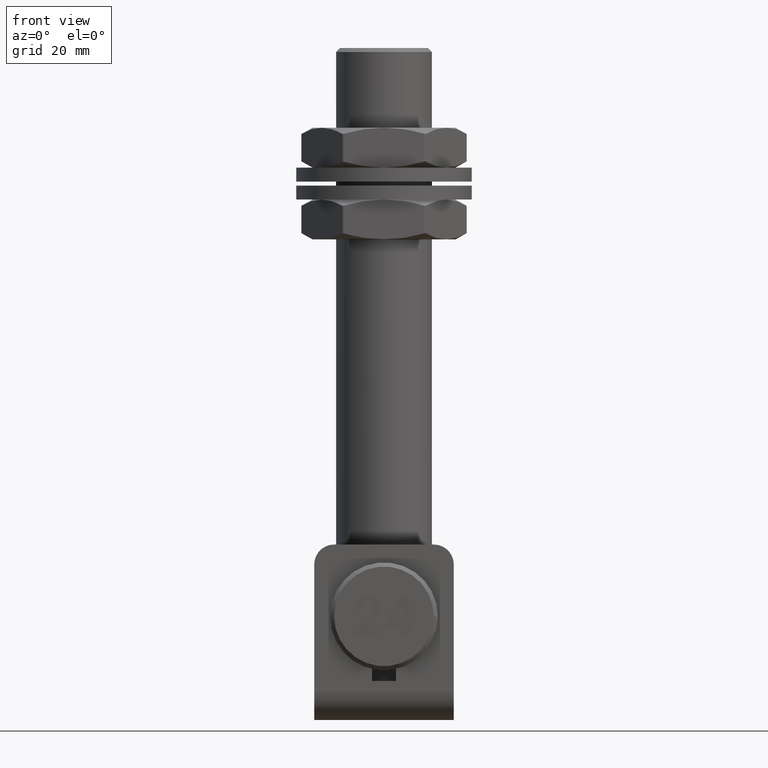
[diagram: clean part render]
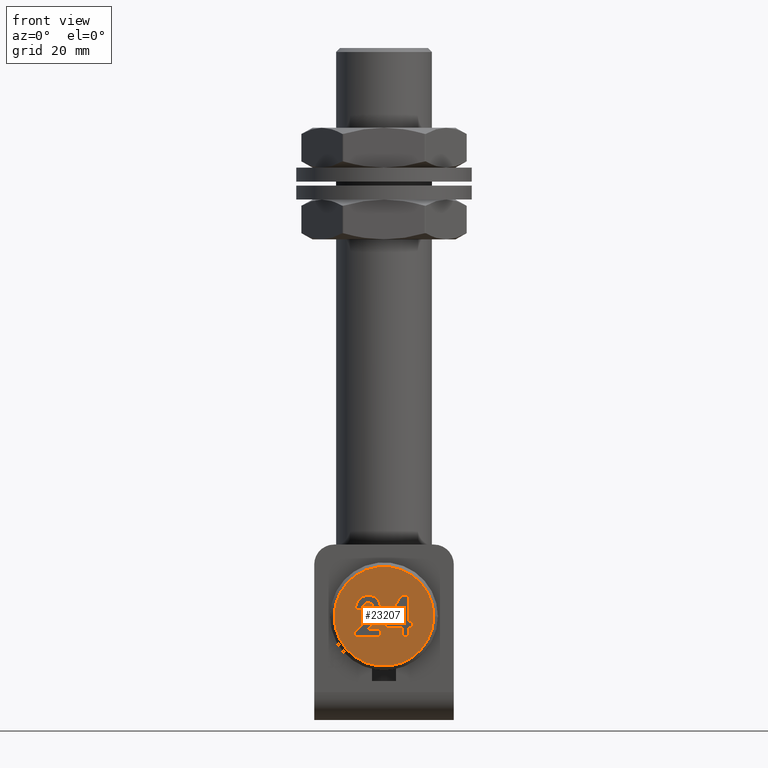
[diagram: same view with one face highlighted and labeled with its STEP entity id]
A machine part, front view. The second image highlights one B-rep face of the part: STEP entity #23207.
In plain terms, the highlighted planar face has unit normal (0, 1, 0).
Its self-contained STEP definition (entity closure, byte-faithful):
#162 = DIRECTION ( 'NONE',  ( -1.000000000000000000, 1.248715672555073806E-47, 0.000000000000000000 ) ) ;
#204 = CARTESIAN_POINT ( 'NONE',  ( 2.695730507753163252, 0.000000000000000000, -2.224119549429654619 ) ) ;
#296 = CARTESIAN_POINT ( 'NONE',  ( 6.212892374296842490, 0.000000000000000000, -4.301137658517532714 ) ) ;
#348 = CARTESIAN_POINT ( 'NONE',  ( 7.435897435897423691, 0.000000000000000000, 4.090544871794872250 ) ) ;
#506 = CARTESIAN_POINT ( 'NONE',  ( 0.000000000000000000, 0.000000000000000000, 0.000000000000000000 ) ) ;
#554 = CARTESIAN_POINT ( 'NONE',  ( 0.9017613116166374176, 0.000000000000000000, -2.383544163545157524 ) ) ;
#566 = ORIENTED_EDGE ( 'NONE', *, *, #19138, .T. ) ;
#580 = ORIENTED_EDGE ( 'NONE', *, *, #7438, .T. ) ;
#736 = CARTESIAN_POINT ( 'NONE',  ( 1.160881747316770962, 0.000000000000000000, -0.8251014892424962666 ) ) ;
#775 = EDGE_CURVE ( 'NONE', #20472, #20631, #15069, .T. ) ;
#822 = CARTESIAN_POINT ( 'NONE',  ( 3.148626919423948234, 0.000000000000000000, -0.6976737709895237671 ) ) ;
#1052 = LINE ( 'NONE', #7384, #4547 ) ;
#1154 = CARTESIAN_POINT ( 'NONE',  ( 0.7692307692307723821, 0.000000000000000000, 3.333333333333333481 ) ) ;
#1407 = VERTEX_POINT ( 'NONE', #348 ) ;
#1458 = CARTESIAN_POINT ( 'NONE',  ( 0.8974358974359004648, 0.000000000000000000, -2.257612179487179294 ) ) ;
#1476 = CARTESIAN_POINT ( 'NONE',  ( 4.047884632372604763, 0.000000000000000000, -3.459858976382712115 ) ) ;
#1579 = B_SPLINE_CURVE_WITH_KNOTS ( 'NONE', 3,
 ( #4480, #19085, #15562, #4404, #2600, #20942, #6337, #22858, #822, #9771, #22790, #21086, #11769, #11912, #13630 ),
 .UNSPECIFIED., .F., .F.,
 ( 4, 1, 1, 1, 1, 1, 1, 1, 1, 1, 1, 1, 4 ),
 ( 0.000000000000000000, 0.1038493619451092836, 0.2011254171233876065, 0.2911309633583702428, 0.3743680063455608886, 0.4507309970211886840, 0.5205205643535403270, 0.5832754154787959111, 0.6400800077829345014, 0.7420435568440585383, 0.8350514117686058668, 0.9208688166387036800, 1.000000000000000000 ),
 .UNSPECIFIED. ) ;
#1716 = CARTESIAN_POINT ( 'NONE',  ( 1.754710264718480905, 0.000000000000000000, -4.396929558284110584 ) ) ;
#1738 = ORIENTED_EDGE ( 'NONE', *, *, #6008, .T. ) ;
#1905 = VERTEX_POINT ( 'NONE', #14963 ) ;
#2011 = EDGE_CURVE ( 'NONE', #20901, #2426, #23669, .T. ) ;
#2107 = LINE ( 'NONE', #1154, #5581 ) ;
#2148 = VECTOR ( 'NONE', #18004, 1000.000000000000000 ) ;
#2169 = CARTESIAN_POINT ( 'NONE',  ( 5.981136075986041689, 0.000000000000000000, -4.525703782343204473 ) ) ;
#2244 = CARTESIAN_POINT ( 'NONE',  ( -12.49999999999999645, 4.091328952775487044E-16, 0.000000000000000000 ) ) ;
#2254 = CARTESIAN_POINT ( 'NONE',  ( 4.013272651356240672, 0.000000000000000000, -5.254233085712087359 ) ) ;
#2279 = EDGE_CURVE ( 'NONE', #20631, #7508, #9259, .T. ) ;
#2326 = VERTEX_POINT ( 'NONE', #12909 ) ;
#2328 = CARTESIAN_POINT ( 'NONE',  ( -0.2564102564102565540, 0.000000000000000000, 2.948717948717948900 ) ) ;
#2329 = CARTESIAN_POINT ( 'NONE',  ( 6.611608432872854380, 0.000000000000000000, -3.775698318619832961 ) ) ;
#2426 = VERTEX_POINT ( 'NONE', #3971 ) ;
#2527 = DIRECTION ( 'NONE',  ( -1.000000000000000000, 3.273063162220390326E-17, 0.000000000000000000 ) ) ;
#2600 = CARTESIAN_POINT ( 'NONE',  ( 3.773390104110658783, 0.000000000000000000, 0.1600722506744252649 ) ) ;
#2927 = CARTESIAN_POINT ( 'NONE',  ( -6.282051282051300589, 0.000000000000000000, -5.256410256410256387 ) ) ;
#2933 = DIRECTION ( 'NONE',  ( 0.000000000000000000, -1.097407307666327465E-31, 1.000000000000000000 ) ) ;
#3028 = EDGE_CURVE ( 'NONE', #11375, #3718, #19875, .T. ) ;
#3065 = ORIENTED_EDGE ( 'NONE', *, *, #12020, .T. ) ;
#3132 = VECTOR ( 'NONE', #15585, 1000.000000000000000 ) ;
#3166 = CARTESIAN_POINT ( 'NONE',  ( 5.350538696513813974, 0.000000000000000000, -2.056808136281861987 ) ) ;
#3195 = CARTESIAN_POINT ( 'NONE',  ( -0.2564102564102565540, 0.000000000000000000, 1.131810897435897800 ) ) ;
#3222 = LINE ( 'NONE', #13779, #23672 ) ;
#3287 = LINE ( 'NONE', #13842, #2148 ) ;
#3326 = LINE ( 'NONE', #10968, #15137 ) ;
#3347 = LINE ( 'NONE', #16278, #10833 ) ;
#3352 = EDGE_CURVE ( 'NONE', #21139, #20901, #20453, .T. ) ;
#3447 = EDGE_LOOP ( 'NONE', ( #14843 ) ) ;
#3490 = CARTESIAN_POINT ( 'NONE',  ( 5.212745881549675886, 0.000000000000000000, -2.567122485083089156 ) ) ;
#3665 = DIRECTION ( 'NONE',  ( -0.5452008499230921457, 3.686378133342671527E-33, -0.8383054534256222379 ) ) ;
#3718 = VERTEX_POINT ( 'NONE', #6536 ) ;
#3851 = CARTESIAN_POINT ( 'NONE',  ( 2.888831913534871454, 0.000000000000000000, -2.890989924265597200 ) ) ;
#3869 = LINE ( 'NONE', #11712, #12496 ) ;
#3971 = CARTESIAN_POINT ( 'NONE',  ( -7.179487179487197501, 0.000000000000000000, 1.282051282051282159 ) ) ;
#3995 = CARTESIAN_POINT ( 'NONE',  ( 2.517848952035801613, 0.000000000000000000, 1.459684170639614864 ) ) ;
#4047 = CARTESIAN_POINT ( 'NONE',  ( 4.883616782359537112, 0.000000000000000000, -5.129055654255662233 ) ) ;
#4085 = CARTESIAN_POINT ( 'NONE',  ( 0.9024904191430668243, 0.000000000000000000, -2.028109764263357206 ) ) ;
#4118 = VECTOR ( 'NONE', #5974, 1000.000000000000000 ) ;
#4123 = CARTESIAN_POINT ( 'NONE',  ( 3.898237179487194393, 0.000000000000000000, -5.256410256410256387 ) ) ;
#4192 = CARTESIAN_POINT ( 'NONE',  ( 5.463965430570580040, 0.000000000000000000, -4.886372236948200332 ) ) ;
#4301 = VERTEX_POINT ( 'NONE', #19749 ) ;
#4372 = CARTESIAN_POINT ( 'NONE',  ( -6.282051282051300589, 0.000000000000000000, 1.282051282051282159 ) ) ;
#4377 = CARTESIAN_POINT ( 'NONE',  ( 2.692307692307706724, 0.000000000000000000, -2.131410256410255943 ) ) ;
#4404 = CARTESIAN_POINT ( 'NONE',  ( 3.987213823199759144, 0.000000000000000000, 0.4081259808719842064 ) ) ;
#4442 = DIRECTION ( 'NONE',  ( -1.000000000000000000, 1.248715672555073806E-47, 0.000000000000000000 ) ) ;
#4480 = CARTESIAN_POINT ( 'NONE',  ( 4.475160256410243065, 0.000000000000000000, 0.9395032051282056207 ) ) ;
#4547 = VECTOR ( 'NONE', #18471, 1000.000000000000000 ) ;
#4574 = ORIENTED_EDGE ( 'NONE', *, *, #8123, .T. ) ;
#4620 = VERTEX_POINT ( 'NONE', #2244 ) ;
#4895 = LINE ( 'NONE', #7705, #3132 ) ;
#5022 = CARTESIAN_POINT ( 'NONE',  ( 5.145657258848933324, 0.000000000000000000, -2.716192244080153362 ) ) ;
#5046 = CARTESIAN_POINT ( 'NONE',  ( 0.000000000000000000, 0.000000000000000000, 0.000000000000000000 ) ) ;
#5182 = CARTESIAN_POINT ( 'NONE',  ( -7.179487179487197501, 0.000000000000000000, 2.948717948717948900 ) ) ;
#5282 = CARTESIAN_POINT ( 'NONE',  ( 4.535080868534912213, 0.000000000000000000, -3.343781880472533885 ) ) ;
#5581 = VECTOR ( 'NONE', #2933, 1000.000000000000000 ) ;
#5625 = CARTESIAN_POINT ( 'NONE',  ( 2.702362761446140293, 0.000000000000000000, -2.403758668394563092 ) ) ;
#5731 = ORIENTED_EDGE ( 'NONE', *, *, #775, .T. ) ;
#5734 = CARTESIAN_POINT ( 'NONE',  ( 7.156597888856368606, 0.000000000000000000, -2.067734841220996600 ) ) ;
#5884 = CARTESIAN_POINT ( 'NONE',  ( 4.568666002936305759, 0.000000000000000000, -5.201136804420536386 ) ) ;
#5886 = EDGE_CURVE ( 'NONE', #12665, #11375, #2107, .T. ) ;
#5922 = FACE_BOUND ( 'NONE', #17546, .T. ) ;
#5974 = DIRECTION ( 'NONE',  ( -1.000000000000000000, 1.248715672555073806E-47, 0.000000000000000000 ) ) ;
#5979 = CARTESIAN_POINT ( 'NONE',  ( 1.289241229420915236, 0.000000000000000000, -3.751375095637238033 ) ) ;
#6008 = EDGE_CURVE ( 'NONE', #9209, #21688, #12832, .T. ) ;
#6261 = CARTESIAN_POINT ( 'NONE',  ( 4.134615384615371703, 0.000000000000000000, 3.333333333333333481 ) ) ;
#6337 = CARTESIAN_POINT ( 'NONE',  ( 3.415937503877595205, 0.000000000000000000, -0.2964415054149734940 ) ) ;
#6415 = CARTESIAN_POINT ( 'NONE',  ( 0.9611936330899211178, 0.000000000000000000, -1.559752245885879463 ) ) ;
#6489 = FACE_BOUND ( 'NONE', #7018, .T. ) ;
#6536 = CARTESIAN_POINT ( 'NONE',  ( 7.435897435897423691, 0.000000000000000000, 5.000000000000000000 ) ) ;
#7018 = EDGE_LOOP ( 'NONE', ( #16234, #18520, #11788, #14964, #12597, #580, #7084, #20373, #3065, #18889, #5731 ) ) ;
#7028 = CARTESIAN_POINT ( 'NONE',  ( 5.271813143355998932, 0.000000000000000000, -2.408218577340008881 ) ) ;
#7084 = ORIENTED_EDGE ( 'NONE', *, *, #21181, .T. ) ;
#7112 = CARTESIAN_POINT ( 'NONE',  ( 5.381608423082919757, 0.000000000000000000, -1.734189559396061675 ) ) ;
#7194 = ORIENTED_EDGE ( 'NONE', *, *, #19319, .T. ) ;
#7384 = CARTESIAN_POINT ( 'NONE',  ( -4.487179487179504989, 0.000000000000000000, 2.948717948717948900 ) ) ;
#7438 = EDGE_CURVE ( 'NONE', #8814, #21439, #8645, .T. ) ;
#7489 = CARTESIAN_POINT ( 'NONE',  ( 2.692307692307706724, 0.000000000000000000, -2.131410256410255943 ) ) ;
#7508 = VERTEX_POINT ( 'NONE', #9925 ) ;
#7541 = CARTESIAN_POINT ( 'NONE',  ( 1.080533613779107727, 0.000000000000000000, -1.074657301942110843 ) ) ;
#7553 = VECTOR ( 'NONE', #3665, 1000.000000000000114 ) ;
#7582 = CARTESIAN_POINT ( 'NONE',  ( 7.015725736292076853, 0.000000000000000000, -2.817237689682481339 ) ) ;
#7705 = CARTESIAN_POINT ( 'NONE',  ( -6.282051282051300589, 0.000000000000000000, 5.000000000000000000 ) ) ;
#7727 = CARTESIAN_POINT ( 'NONE',  ( 6.773664607853286057, 0.000000000000000000, -3.479015080774944479 ) ) ;
#7755 = LINE ( 'NONE', #9056, #11741 ) ;
#7771 = CARTESIAN_POINT ( 'NONE',  ( 2.037732998935157358, 0.000000000000000000, 0.8220498048689192094 ) ) ;
#7930 = ORIENTED_EDGE ( 'NONE', *, *, #5886, .T. ) ;
#8123 = EDGE_CURVE ( 'NONE', #13214, #19203, #16535, .T. ) ;
#8227 = EDGE_CURVE ( 'NONE', #4620, #4620, #13495, .T. ) ;
#8485 = DIRECTION ( 'NONE',  ( -1.000000000000000000, 3.273063162220390326E-17, 0.000000000000000000 ) ) ;
#8644 = CARTESIAN_POINT ( 'NONE',  ( 5.375755673791099198, 0.000000000000000000, -1.865616103546565485 ) ) ;
#8645 = LINE ( 'NONE', #12011, #22737 ) ;
#8658 = EDGE_CURVE ( 'NONE', #1407, #2326, #7755, .T. ) ;
#8717 = B_SPLINE_CURVE_WITH_KNOTS ( 'NONE', 3,
 ( #21696, #1476, #14347, #18131, #18041, #5282, #21469, #17892, #14502, #16036, #8957, #5022, #3490, #7028, #16268, #3166, #8644, #7112, #14186 ),
 .UNSPECIFIED., .F., .F.,
 ( 4, 1, 1, 1, 1, 1, 1, 1, 1, 1, 1, 1, 1, 1, 1, 1, 4 ),
 ( 0.000000000000000000, 0.05646686847186224711, 0.1111640986969631428, 0.1649370968759848177, 0.2183217523125936255, 0.2723929232482763529, 0.3279763434477038775, 0.3852910519840206938, 0.4449029182928191384, 0.5068438192198354564, 0.5694881852629681829, 0.6341532155537223936, 0.7009760953100497849, 0.7708974968462684041, 0.8436256105557792262, 0.9196596761155397814, 1.000000000000000000 ),
 .UNSPECIFIED. ) ;
#8814 = VERTEX_POINT ( 'NONE', #5182 ) ;
#8957 = CARTESIAN_POINT ( 'NONE',  ( 5.064518044407638975, 0.000000000000000000, -2.853459905820766362 ) ) ;
#9056 = CARTESIAN_POINT ( 'NONE',  ( 7.435897435897423691, 0.000000000000000000, 4.090544871794872250 ) ) ;
#9142 = DIRECTION ( 'NONE',  ( -0.6847574953382552509, 3.698657884126803967E-33, -0.7287710014662214242 ) ) ;
#9185 = CARTESIAN_POINT ( 'NONE',  ( 2.357973334008672150, 0.000000000000000000, -4.876056005491084200 ) ) ;
#9209 = VERTEX_POINT ( 'NONE', #20505 ) ;
#9259 = LINE ( 'NONE', #14689, #7553 ) ;
#9285 = CARTESIAN_POINT ( 'NONE',  ( 4.000400641025628978, 0.000000000000000000, -3.461538461538460343 ) ) ;
#9410 = CARTESIAN_POINT ( 'NONE',  ( 3.898237179487194393, 0.000000000000000000, -5.256410256410256387 ) ) ;
#9571 = CARTESIAN_POINT ( 'NONE',  ( 0.8974358974359004648, 0.000000000000000000, -2.257612179487179294 ) ) ;
#9596 = CARTESIAN_POINT ( 'NONE',  ( 2.990188479513307573, 0.000000000000000000, 2.021740701596806744 ) ) ;
#9628 = EDGE_CURVE ( 'NONE', #2326, #13214, #1579, .T. ) ;
#9680 = AXIS2_PLACEMENT_3D ( 'NONE', #5046, #19507, #8485 ) ;
#9686 = DIRECTION ( 'NONE',  ( 3.273063162220390326E-17, 1.000000000000000000, -1.097407307666327246E-31 ) ) ;
#9771 = CARTESIAN_POINT ( 'NONE',  ( 3.018645811217768316, 0.000000000000000000, -0.9323684157909403192 ) ) ;
#9843 = PLANE ( 'NONE',  #23905 ) ;
#9925 = CARTESIAN_POINT ( 'NONE',  ( -4.411057692307710276, 0.000000000000000000, -5.256410256410256387 ) ) ;
#10079 = VECTOR ( 'NONE', #14278, 1000.000000000000000 ) ;
#10208 = EDGE_CURVE ( 'NONE', #14375, #20965, #14333, .T. ) ;
#10351 = VECTOR ( 'NONE', #20058, 1000.000000000000000 ) ;
#10462 = EDGE_CURVE ( 'NONE', #7508, #21139, #20830, .T. ) ;
#10567 = VERTEX_POINT ( 'NONE', #15672 ) ;
#10658 = CARTESIAN_POINT ( 'NONE',  ( 4.000400641025628978, 0.000000000000000000, -3.461538461538460343 ) ) ;
#10833 = VECTOR ( 'NONE', #22040, 1000.000000000000000 ) ;
#10892 = ORIENTED_EDGE ( 'NONE', *, *, #14409, .T. ) ;
#10968 = CARTESIAN_POINT ( 'NONE',  ( 4.134615384615371703, 0.000000000000000000, 3.333333333333333481 ) ) ;
#11165 = CARTESIAN_POINT ( 'NONE',  ( 0.7692307692307723821, 0.000000000000000000, 5.000000000000000000 ) ) ;
#11176 = CARTESIAN_POINT ( 'NONE',  ( 7.096306517550315718, 0.000000000000000000, -2.453059331248744535 ) ) ;
#11190 = CARTESIAN_POINT ( 'NONE',  ( 2.705838239880384855, 0.000000000000000000, -5.047578771092743999 ) ) ;
#11216 = CARTESIAN_POINT ( 'NONE',  ( 2.794077043625910584, 0.000000000000000000, 1.796585122624639874 ) ) ;
#11288 = CARTESIAN_POINT ( 'NONE',  ( 1.499968878369690950, 0.000000000000000000, -0.04603137015635107993 ) ) ;
#11322 = CARTESIAN_POINT ( 'NONE',  ( 6.425931908037654239, 0.000000000000000000, -4.051350641820528509 ) ) ;
#11375 = VERTEX_POINT ( 'NONE', #11165 ) ;
#11552 = ORIENTED_EDGE ( 'NONE', *, *, #22744, .T. ) ;
#11693 = CARTESIAN_POINT ( 'NONE',  ( -6.282051282051300589, 0.000000000000000000, 1.282051282051282159 ) ) ;
#11712 = CARTESIAN_POINT ( 'NONE',  ( -4.487179487179504989, 0.000000000000000000, 5.000000000000000000 ) ) ;
#11741 = VECTOR ( 'NONE', #9142, 1000.000000000000000 ) ;
#11769 = CARTESIAN_POINT ( 'NONE',  ( 2.706690279058841408, 0.000000000000000000, -1.835917833793885734 ) ) ;
#11788 = ORIENTED_EDGE ( 'NONE', *, *, #3352, .T. ) ;
#11912 = CARTESIAN_POINT ( 'NONE',  ( 2.696970557656962697, 0.000000000000000000, -2.035610981757747684 ) ) ;
#12011 = CARTESIAN_POINT ( 'NONE',  ( -7.179487179487197501, 0.000000000000000000, 2.948717948717948900 ) ) ;
#12020 = EDGE_CURVE ( 'NONE', #1905, #18860, #3869, .T. ) ;
#12496 = VECTOR ( 'NONE', #18888, 1000.000000000000000 ) ;
#12597 = ORIENTED_EDGE ( 'NONE', *, *, #12768, .T. ) ;
#12665 = VERTEX_POINT ( 'NONE', #23601 ) ;
#12768 = EDGE_CURVE ( 'NONE', #2426, #8814, #3222, .T. ) ;
#12832 = B_SPLINE_CURVE_WITH_KNOTS ( 'NONE', 3,
 ( #9410, #18504, #18439, #20190, #11190, #9185, #23735, #1716, #22020, #5979, #20573, #15300, #13360, #554, #9571 ),
 .UNSPECIFIED., .F., .F.,
 ( 4, 1, 1, 1, 1, 1, 1, 1, 1, 1, 1, 1, 4 ),
 ( 0.000000000000000000, 0.08960056311114231176, 0.1749981562047625006, 0.2574530692942108012, 0.3391733516080419064, 0.4203131029915069816, 0.5013353616744209429, 0.5841166147454606161, 0.6702216438255634845, 0.7565112185241614773, 0.8392316525298684216, 0.9201329153007136163, 0.9999999999999998890 ),
 .UNSPECIFIED. ) ;
#12909 = CARTESIAN_POINT ( 'NONE',  ( 4.475160256410243065, 0.000000000000000000, 0.9395032051282056207 ) ) ;
#12917 = DIRECTION ( 'NONE',  ( 0.000000000000000000, -1.097407307666327465E-31, 1.000000000000000000 ) ) ;
#12942 = CARTESIAN_POINT ( 'NONE',  ( 3.908468417936228345, 0.000000000000000000, -3.457025006618102747 ) ) ;
#12967 = ORIENTED_EDGE ( 'NONE', *, *, #10208, .T. ) ;
#13155 = CARTESIAN_POINT ( 'NONE',  ( 1.653794029105357222, 0.000000000000000000, 0.2317206003124804292 ) ) ;
#13214 = VERTEX_POINT ( 'NONE', #4377 ) ;
#13360 = CARTESIAN_POINT ( 'NONE',  ( 0.9104681486394136103, 0.000000000000000000, -2.637038792112925023 ) ) ;
#13495 = CIRCLE ( 'NONE', #9680, 12.49999999999999645 ) ;
#13630 = CARTESIAN_POINT ( 'NONE',  ( 2.692307692307706724, 0.000000000000000000, -2.131410256410255943 ) ) ;
#13632 = CARTESIAN_POINT ( 'NONE',  ( 1.367914020826976884, 0.000000000000000000, -0.3126386003962783322 ) ) ;
#13637 = B_SPLINE_CURVE_WITH_KNOTS ( 'NONE', 3,
 ( #20426, #18658, #5734, #11176, #7582, #22499, #7727, #2329, #11322, #296, #2169, #15208, #4192, #15040, #4047, #5884, #22424, #2254, #4123 ),
 .UNSPECIFIED., .F., .F.,
 ( 4, 1, 1, 1, 1, 1, 1, 1, 1, 1, 1, 1, 1, 1, 1, 1, 4 ),
 ( 0.000000000000000000, 0.07493300306220941620, 0.1464145890375253001, 0.2147331780636017040, 0.2803956905112224840, 0.3439118344860920828, 0.4055207421763735165, 0.4664761993946441310, 0.5268093209306767832, 0.5861676109153181047, 0.6441223785331934293, 0.7016405780206490528, 0.7587758228835449481, 0.8166463504748902036, 0.8756669356691189066, 0.9366301735601212375, 1.000000000000000000 ),
 .UNSPECIFIED. ) ;
#13779 = CARTESIAN_POINT ( 'NONE',  ( -7.179487179487197501, 0.000000000000000000, 1.282051282051282159 ) ) ;
#13842 = CARTESIAN_POINT ( 'NONE',  ( 5.384615384615372591, 0.000000000000000000, -1.666666666666666519 ) ) ;
#14186 = CARTESIAN_POINT ( 'NONE',  ( 5.384615384615372591, 0.000000000000000000, -1.666666666666666519 ) ) ;
#14235 = DIRECTION ( 'NONE',  ( 0.000000000000000000, 1.097407307666327246E-31, -1.000000000000000000 ) ) ;
#14262 = B_SPLINE_CURVE_WITH_KNOTS ( 'NONE', 3,
 ( #15564, #17406, #4085, #18780, #6415, #22860, #7541, #736, #21015, #13632, #11288, #13155, #16942, #7771, #20604, #3995, #11216, #9596, #16846 ),
 .UNSPECIFIED., .F., .F.,
 ( 4, 1, 1, 1, 1, 1, 1, 1, 1, 1, 1, 1, 1, 1, 1, 1, 4 ),
 ( 0.000000000000000000, 0.04551790420933761461, 0.09161629767977473582, 0.1392470217345384287, 0.1882421946368200150, 0.2386738793130218639, 0.2906648485143009664, 0.3448410113493712847, 0.4004329488281121452, 0.4591452564866727593, 0.5225527989850071720, 0.5901028361144564638, 0.6628158209351491248, 0.7396804345129894820, 0.8215748733749372867, 0.9083297394419733717, 1.000000000000000000 ),
 .UNSPECIFIED. ) ;
#14278 = DIRECTION ( 'NONE',  ( 1.000000000000000000, -1.248715672555073806E-47, 0.000000000000000000 ) ) ;
#14321 = CARTESIAN_POINT ( 'NONE',  ( -0.2564102564102565540, 0.000000000000000000, 2.948717948717948900 ) ) ;
#14333 = LINE ( 'NONE', #19722, #16352 ) ;
#14347 = CARTESIAN_POINT ( 'NONE',  ( 4.141364494873767121, 0.000000000000000000, -3.456552640142251498 ) ) ;
#14375 = VERTEX_POINT ( 'NONE', #16812 ) ;
#14409 = EDGE_CURVE ( 'NONE', #10567, #9209, #13637, .T. ) ;
#14419 = VECTOR ( 'NONE', #12917, 1000.000000000000000 ) ;
#14502 = CARTESIAN_POINT ( 'NONE',  ( 4.872791971330611815, 0.000000000000000000, -3.091188226014703222 ) ) ;
#14689 = CARTESIAN_POINT ( 'NONE',  ( -0.2564102564102565540, 0.000000000000000000, 1.131810897435897800 ) ) ;
#14843 = ORIENTED_EDGE ( 'NONE', *, *, #8227, .T. ) ;
#14886 = EDGE_CURVE ( 'NONE', #14914, #1905, #4895, .T. ) ;
#14914 = VERTEX_POINT ( 'NONE', #18073 ) ;
#14963 = CARTESIAN_POINT ( 'NONE',  ( -4.487179487179504989, 0.000000000000000000, 5.000000000000000000 ) ) ;
#14964 = ORIENTED_EDGE ( 'NONE', *, *, #2011, .T. ) ;
#15040 = CARTESIAN_POINT ( 'NONE',  ( 5.181048217391428068, 0.000000000000000000, -5.021186711299971073 ) ) ;
#15069 = LINE ( 'NONE', #14321, #17106 ) ;
#15137 = VECTOR ( 'NONE', #162, 1000.000000000000000 ) ;
#15208 = CARTESIAN_POINT ( 'NONE',  ( 5.731257156334691238, 0.000000000000000000, -4.722025382450863340 ) ) ;
#15254 = ORIENTED_EDGE ( 'NONE', *, *, #9628, .T. ) ;
#15300 = CARTESIAN_POINT ( 'NONE',  ( 0.9915418483940876548, 0.000000000000000000, -3.013640863478463938 ) ) ;
#15562 = CARTESIAN_POINT ( 'NONE',  ( 4.223419261458118079, 0.000000000000000000, 0.6695733206691154571 ) ) ;
#15564 = CARTESIAN_POINT ( 'NONE',  ( 0.8974358974359004648, 0.000000000000000000, -2.257612179487179294 ) ) ;
#15585 = DIRECTION ( 'NONE',  ( 1.000000000000000000, -1.248715672555073806E-47, 0.000000000000000000 ) ) ;
#15672 = CARTESIAN_POINT ( 'NONE',  ( 7.179487179487167303, 0.000000000000000000, -1.666666666666666075 ) ) ;
#15990 = FACE_OUTER_BOUND ( 'NONE', #3447, .T. ) ;
#16036 = CARTESIAN_POINT ( 'NONE',  ( 4.973165253954779708, 0.000000000000000000, -2.978840264189996034 ) ) ;
#16234 = ORIENTED_EDGE ( 'NONE', *, *, #2279, .T. ) ;
#16268 = CARTESIAN_POINT ( 'NONE',  ( 5.317368642091307329, 0.000000000000000000, -2.237773763346053713 ) ) ;
#16278 = CARTESIAN_POINT ( 'NONE',  ( -6.282051282051300589, 0.000000000000000000, 2.948717948717948900 ) ) ;
#16352 = VECTOR ( 'NONE', #21562, 999.9999999999998863 ) ;
#16535 = B_SPLINE_CURVE_WITH_KNOTS ( 'NONE', 3,
 ( #7489, #204, #5625, #18649, #3851, #20167, #22082, #22173, #16742, #12942, #10658 ),
 .UNSPECIFIED., .F., .F.,
 ( 4, 1, 1, 1, 1, 1, 1, 1, 4 ),
 ( 0.000000000000000000, 0.1326995272668022030, 0.2571266093063658831, 0.3780142218590326064, 0.5007685709974879495, 0.6232531629689262997, 0.7437487086138715453, 0.8681757906534350866, 1.000000000000000000 ),
 .UNSPECIFIED. ) ;
#16620 = CARTESIAN_POINT ( 'NONE',  ( -6.282051282051300589, 0.000000000000000000, -5.256410256410256387 ) ) ;
#16706 = LINE ( 'NONE', #23760, #10351 ) ;
#16742 = CARTESIAN_POINT ( 'NONE',  ( 3.729762617207915021, 0.000000000000000000, -3.448251362856553204 ) ) ;
#16812 = CARTESIAN_POINT ( 'NONE',  ( 3.090945512820527430, 0.000000000000000000, 2.137419871794871362 ) ) ;
#16846 = CARTESIAN_POINT ( 'NONE',  ( 3.090945512820527430, 0.000000000000000000, 2.137419871794871362 ) ) ;
#16942 = CARTESIAN_POINT ( 'NONE',  ( 1.833633990821485371, 0.000000000000000000, 0.5213815997561866977 ) ) ;
#17106 = VECTOR ( 'NONE', #14235, 1000.000000000000000 ) ;
#17228 = EDGE_CURVE ( 'NONE', #19203, #4301, #8717, .T. ) ;
#17320 = ORIENTED_EDGE ( 'NONE', *, *, #3028, .T. ) ;
#17406 = CARTESIAN_POINT ( 'NONE',  ( 0.8991136060725604118, 0.000000000000000000, -2.181435202423378517 ) ) ;
#17546 = EDGE_LOOP ( 'NONE', ( #19752, #22984, #10892, #1738, #7194, #12967, #11552, #7930, #17320, #566, #18916, #15254, #4574 ) ) ;
#17892 = CARTESIAN_POINT ( 'NONE',  ( 4.766272863213234956, 0.000000000000000000, -3.189975252784731818 ) ) ;
#18004 = DIRECTION ( 'NONE',  ( 1.000000000000000000, -1.248715672555073806E-47, 0.000000000000000000 ) ) ;
#18041 = CARTESIAN_POINT ( 'NONE',  ( 4.409526256966958435, 0.000000000000000000, -3.395754009297371034 ) ) ;
#18073 = CARTESIAN_POINT ( 'NONE',  ( -6.282051282051300589, 0.000000000000000000, 5.000000000000000000 ) ) ;
#18131 = CARTESIAN_POINT ( 'NONE',  ( 4.278772586118756216, 0.000000000000000000, -3.434543254362499631 ) ) ;
#18418 = EDGE_CURVE ( 'NONE', #4301, #10567, #3287, .T. ) ;
#18439 = CARTESIAN_POINT ( 'NONE',  ( 3.481069483516256557, 0.000000000000000000, -5.244252413133982493 ) ) ;
#18471 = DIRECTION ( 'NONE',  ( 1.000000000000000000, -1.248715672555073806E-47, 0.000000000000000000 ) ) ;
#18504 = CARTESIAN_POINT ( 'NONE',  ( 3.756972472812074137, 0.000000000000000000, -5.252293268971362394 ) ) ;
#18520 = ORIENTED_EDGE ( 'NONE', *, *, #10462, .T. ) ;
#18649 = CARTESIAN_POINT ( 'NONE',  ( 2.777062558927354985, 0.000000000000000000, -2.658550927465507474 ) ) ;
#18658 = CARTESIAN_POINT ( 'NONE',  ( 7.171738446968060288, 0.000000000000000000, -1.802440643094171069 ) ) ;
#18780 = CARTESIAN_POINT ( 'NONE',  ( 0.9259698507146217894, 0.000000000000000000, -1.796090745619892459 ) ) ;
#18860 = VERTEX_POINT ( 'NONE', #18957 ) ;
#18888 = DIRECTION ( 'NONE',  ( 0.000000000000000000, 1.097407307666327246E-31, -1.000000000000000000 ) ) ;
#18889 = ORIENTED_EDGE ( 'NONE', *, *, #20827, .T. ) ;
#18916 = ORIENTED_EDGE ( 'NONE', *, *, #8658, .T. ) ;
#18957 = CARTESIAN_POINT ( 'NONE',  ( -4.487179487179504989, 0.000000000000000000, 2.948717948717948900 ) ) ;
#19085 = CARTESIAN_POINT ( 'NONE',  ( 4.389437949204855194, 0.000000000000000000, 0.8475872560237796005 ) ) ;
#19138 = EDGE_CURVE ( 'NONE', #3718, #1407, #16706, .T. ) ;
#19203 = VERTEX_POINT ( 'NONE', #9285 ) ;
#19319 = EDGE_CURVE ( 'NONE', #21688, #14375, #14262, .T. ) ;
#19350 = CARTESIAN_POINT ( 'NONE',  ( 0.7692307692307723821, 0.000000000000000000, 5.000000000000000000 ) ) ;
#19507 = DIRECTION ( 'NONE',  ( -3.273063162220390326E-17, -1.000000000000000000, 1.097407307666327246E-31 ) ) ;
#19722 = CARTESIAN_POINT ( 'NONE',  ( 3.090945512820527430, 0.000000000000000000, 2.137419871794871362 ) ) ;
#19749 = CARTESIAN_POINT ( 'NONE',  ( 5.384615384615372591, 0.000000000000000000, -1.666666666666666519 ) ) ;
#19752 = ORIENTED_EDGE ( 'NONE', *, *, #17228, .T. ) ;
#19875 = LINE ( 'NONE', #19350, #10079 ) ;
#20058 = DIRECTION ( 'NONE',  ( 0.000000000000000000, 1.097407307666327246E-31, -1.000000000000000000 ) ) ;
#20167 = CARTESIAN_POINT ( 'NONE',  ( 3.051099824973356078, 0.000000000000000000, -3.090487421552949865 ) ) ;
#20190 = CARTESIAN_POINT ( 'NONE',  ( 3.081440852985050771, 0.000000000000000000, -5.166833801069117271 ) ) ;
#20373 = ORIENTED_EDGE ( 'NONE', *, *, #14886, .T. ) ;
#20426 = CARTESIAN_POINT ( 'NONE',  ( 7.179487179487167303, 0.000000000000000000, -1.666666666666666075 ) ) ;
#20453 = LINE ( 'NONE', #16620, #14419 ) ;
#20472 = VERTEX_POINT ( 'NONE', #2328 ) ;
#20505 = CARTESIAN_POINT ( 'NONE',  ( 3.898237179487194393, 0.000000000000000000, -5.256410256410256387 ) ) ;
#20573 = CARTESIAN_POINT ( 'NONE',  ( 1.116363502824997189, 0.000000000000000000, -3.387599644051999093 ) ) ;
#20595 = CARTESIAN_POINT ( 'NONE',  ( -6.282051282051300589, 0.000000000000000000, 2.948717948717948900 ) ) ;
#20604 = CARTESIAN_POINT ( 'NONE',  ( 2.264653328006486444, 0.000000000000000000, 1.136056970297848911 ) ) ;
#20631 = VERTEX_POINT ( 'NONE', #3195 ) ;
#20827 = EDGE_CURVE ( 'NONE', #18860, #20472, #1052, .T. ) ;
#20830 = LINE ( 'NONE', #22105, #21935 ) ;
#20901 = VERTEX_POINT ( 'NONE', #11693 ) ;
#20942 = CARTESIAN_POINT ( 'NONE',  ( 3.586729170503464736, 0.000000000000000000, -0.07746447316093943436 ) ) ;
#20965 = VERTEX_POINT ( 'NONE', #6261 ) ;
#21015 = CARTESIAN_POINT ( 'NONE',  ( 1.257209466140331688, 0.000000000000000000, -0.5720435396648019255 ) ) ;
#21075 = DIRECTION ( 'NONE',  ( 0.000000000000000000, -1.097407307666327465E-31, 1.000000000000000000 ) ) ;
#21086 = CARTESIAN_POINT ( 'NONE',  ( 2.776568900736656076, 0.000000000000000000, -1.530009763998867456 ) ) ;
#21139 = VERTEX_POINT ( 'NONE', #2927 ) ;
#21181 = EDGE_CURVE ( 'NONE', #21439, #14914, #3347, .T. ) ;
#21439 = VERTEX_POINT ( 'NONE', #20595 ) ;
#21469 = CARTESIAN_POINT ( 'NONE',  ( 4.654096468966835154, 0.000000000000000000, -3.274892450578668068 ) ) ;
#21562 = DIRECTION ( 'NONE',  ( 0.6575212211385358385, -2.927439086402798209E-31, 0.7534360249898386375 ) ) ;
#21688 = VERTEX_POINT ( 'NONE', #1458 ) ;
#21696 = CARTESIAN_POINT ( 'NONE',  ( 4.000400641025628978, 0.000000000000000000, -3.461538461538460343 ) ) ;
#21935 = VECTOR ( 'NONE', #4442, 1000.000000000000000 ) ;
#22020 = CARTESIAN_POINT ( 'NONE',  ( 1.501788234605519579, 0.000000000000000000, -4.093723285444791138 ) ) ;
#22040 = DIRECTION ( 'NONE',  ( 0.000000000000000000, -1.097407307666327246E-31, 1.000000000000000000 ) ) ;
#22082 = CARTESIAN_POINT ( 'NONE',  ( 3.246953045293258899, 0.000000000000000000, -3.255852291657044262 ) ) ;
#22105 = CARTESIAN_POINT ( 'NONE',  ( -4.411057692307710276, 0.000000000000000000, -5.256410256410256387 ) ) ;
#22173 = CARTESIAN_POINT ( 'NONE',  ( 3.474567032855730098, 0.000000000000000000, -3.377029671148819023 ) ) ;
#22424 = CARTESIAN_POINT ( 'NONE',  ( 4.238974906321391067, 0.000000000000000000, -5.249961426474840209 ) ) ;
#22499 = CARTESIAN_POINT ( 'NONE',  ( 6.907262014212823154, 0.000000000000000000, -3.159175054075332945 ) ) ;
#22737 = VECTOR ( 'NONE', #23112, 1000.000000000000000 ) ;
#22744 = EDGE_CURVE ( 'NONE', #20965, #12665, #3326, .T. ) ;
#22790 = CARTESIAN_POINT ( 'NONE',  ( 2.892365725510752217, 0.000000000000000000, -1.210169418926149598 ) ) ;
#22858 = CARTESIAN_POINT ( 'NONE',  ( 3.273057712355410320, 0.000000000000000000, -0.5051370163944115532 ) ) ;
#22860 = CARTESIAN_POINT ( 'NONE',  ( 1.014302530603523156, 0.000000000000000000, -1.319296917111675072 ) ) ;
#22984 = ORIENTED_EDGE ( 'NONE', *, *, #18418, .T. ) ;
#23112 = DIRECTION ( 'NONE',  ( 1.000000000000000000, -1.248715672555073806E-47, 0.000000000000000000 ) ) ;
#23207 = ADVANCED_FACE ( 'NONE', ( #5922, #15990, #6489 ), #9843, .F. ) ;
#23601 = CARTESIAN_POINT ( 'NONE',  ( 0.7692307692307723821, 0.000000000000000000, 3.333333333333333481 ) ) ;
#23669 = LINE ( 'NONE', #4372, #4118 ) ;
#23672 = VECTOR ( 'NONE', #21075, 1000.000000000000000 ) ;
#23735 = CARTESIAN_POINT ( 'NONE',  ( 2.039669360016338029, 0.000000000000000000, -4.658777771723094041 ) ) ;
#23760 = CARTESIAN_POINT ( 'NONE',  ( 7.435897435897423691, 0.000000000000000000, 5.000000000000000000 ) ) ;
#23905 = AXIS2_PLACEMENT_3D ( 'NONE', #506, #9686, #2527 ) ;